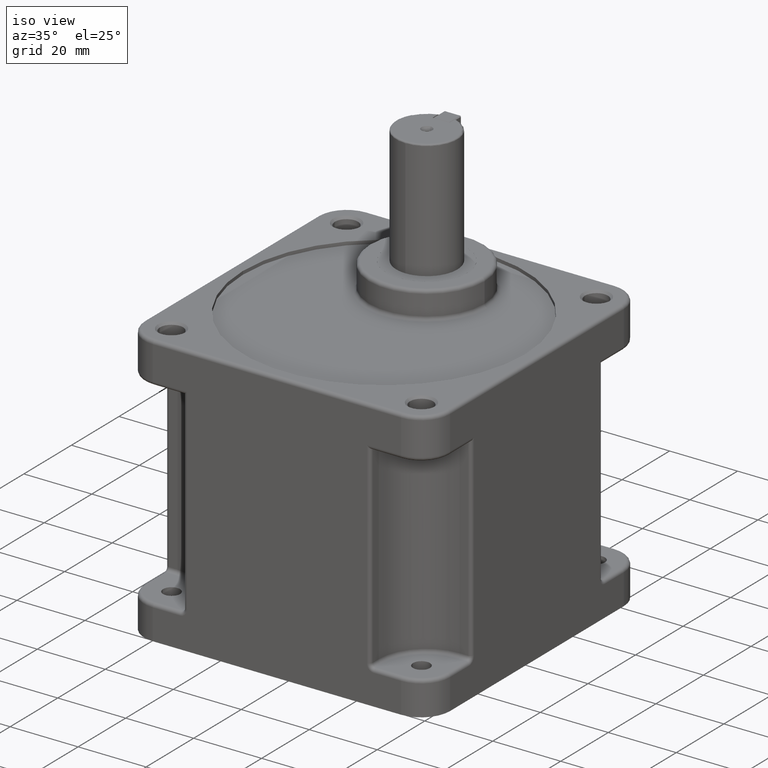
[diagram: clean part render]
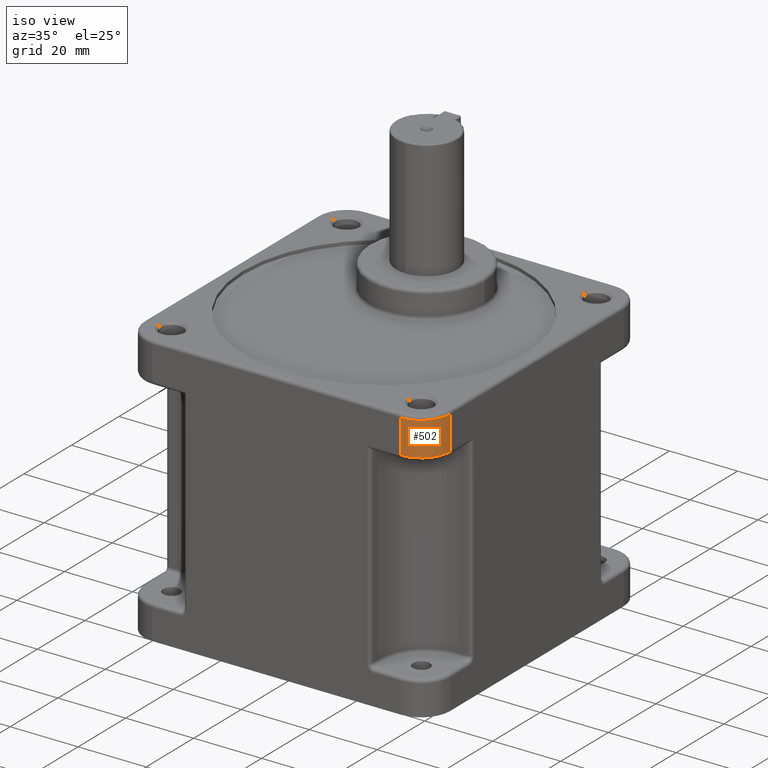
[diagram: same view with one face highlighted and labeled with its STEP entity id]
A machine part, iso view. The second image highlights one B-rep face of the part: STEP entity #502.
In plain terms, the highlighted cylindrical surface (edge-blend (fillet) strip) has radius 8.5 mm, axis along (-0, 0, 1).
Its self-contained STEP definition (entity closure, byte-faithful):
#25 = ORIENTED_EDGE ( 'NONE', *, *, #42, .T. ) ;
#33 = ORIENTED_EDGE ( 'NONE', *, *, #3079, .F. ) ;
#38 = EDGE_CURVE ( 'NONE', #3139, #3089, #4251, .T. ) ;
#42 = EDGE_CURVE ( 'NONE', #3093, #3146, #4261, .T. ) ;
#346 = ORIENTED_EDGE ( 'NONE', *, *, #38, .T. ) ;
#478 = ORIENTED_EDGE ( 'NONE', *, *, #3131, .T. ) ;
#500 = EDGE_LOOP ( 'NONE', ( #478, #346, #33, #25 ) ) ;
#502 = ADVANCED_FACE ( 'NONE', ( #5007 ), #5012, .T. ) ;
#3079 = EDGE_CURVE ( 'NONE', #3093, #3089, #6026, .T. ) ;
#3089 = VERTEX_POINT ( 'NONE', #6021 ) ;
#3093 = VERTEX_POINT ( 'NONE', #6068 ) ;
#3131 = EDGE_CURVE ( 'NONE', #3146, #3139, #6148, .T. ) ;
#3139 = VERTEX_POINT ( 'NONE', #6192 ) ;
#3146 = VERTEX_POINT ( 'NONE', #6144 ) ;
#4237 = AXIS2_PLACEMENT_3D ( 'NONE', #4238, #4259, #4290 ) ;
#4238 = CARTESIAN_POINT ( 'NONE',  ( -36.50000000000003600, -36.50000000000001400, 1.000000000000000900 ) ) ;
#4251 = CIRCLE ( 'NONE', #4237, 8.500000000000000000 ) ;
#4259 = DIRECTION ( 'NONE',  ( -0.0000000000000000000, 0.0000000000000000000, 1.000000000000000000 ) ) ;
#4261 = CIRCLE ( 'NONE', #4286, 8.500000000000000000 ) ;
#4283 = DIRECTION ( 'NONE',  ( 1.000000000000000000, 1.632680918566406600E-015, 0.0000000000000000000 ) ) ;
#4284 = DIRECTION ( 'NONE',  ( -0.0000000000000000000, -0.0000000000000000000, -1.000000000000000000 ) ) ;
#4285 = CARTESIAN_POINT ( 'NONE',  ( -36.50000000000003600, -36.50000000000001400, 10.99999999999999600 ) ) ;
#4286 = AXIS2_PLACEMENT_3D ( 'NONE', #4285, #4284, #4283 ) ;
#4290 = DIRECTION ( 'NONE',  ( 1.000000000000000000, 0.0000000000000000000, 0.0000000000000000000 ) ) ;
#5007 = FACE_OUTER_BOUND ( 'NONE', #500, .T. ) ;
#5012 = CYLINDRICAL_SURFACE ( 'NONE', #5041, 8.500000000000000000 ) ;
#5041 = AXIS2_PLACEMENT_3D ( 'NONE', #5044, #5089, #5088 ) ;
#5044 = CARTESIAN_POINT ( 'NONE',  ( -36.50000000000003600, -36.50000000000001400, 80.29999999999999700 ) ) ;
#5088 = DIRECTION ( 'NONE',  ( -1.000000000000000000, 0.0000000000000000000, 0.0000000000000000000 ) ) ;
#5089 = DIRECTION ( 'NONE',  ( -0.0000000000000000000, -0.0000000000000000000, -1.000000000000000000 ) ) ;
#6017 = CARTESIAN_POINT ( 'NONE',  ( -36.49999999999997200, -45.00000000000001400, 80.29999999999999700 ) ) ;
#6021 = CARTESIAN_POINT ( 'NONE',  ( -36.49999999999997200, -45.00000000000001400, 1.000000000000000900 ) ) ;
#6026 = LINE ( 'NONE', #6017, #6070 ) ;
#6068 = CARTESIAN_POINT ( 'NONE',  ( -36.49999999999997200, -45.00000000000001400, 10.99999999999999600 ) ) ;
#6069 = DIRECTION ( 'NONE',  ( -0.0000000000000000000, -0.0000000000000000000, -1.000000000000000000 ) ) ;
#6070 = VECTOR ( 'NONE', #6069, 1000.000000000000000 ) ;
#6135 = DIRECTION ( 'NONE',  ( -0.0000000000000000000, -0.0000000000000000000, -1.000000000000000000 ) ) ;
#6144 = CARTESIAN_POINT ( 'NONE',  ( -45.00000000000003600, -36.49999999999995000, 10.99999999999999600 ) ) ;
#6148 = LINE ( 'NONE', #6161, #6150 ) ;
#6150 = VECTOR ( 'NONE', #6135, 1000.000000000000000 ) ;
#6161 = CARTESIAN_POINT ( 'NONE',  ( -45.00000000000003600, -36.49999999999995000, 80.29999999999999700 ) ) ;
#6192 = CARTESIAN_POINT ( 'NONE',  ( -45.00000000000003600, -36.49999999999995000, 1.000000000000000900 ) ) ;